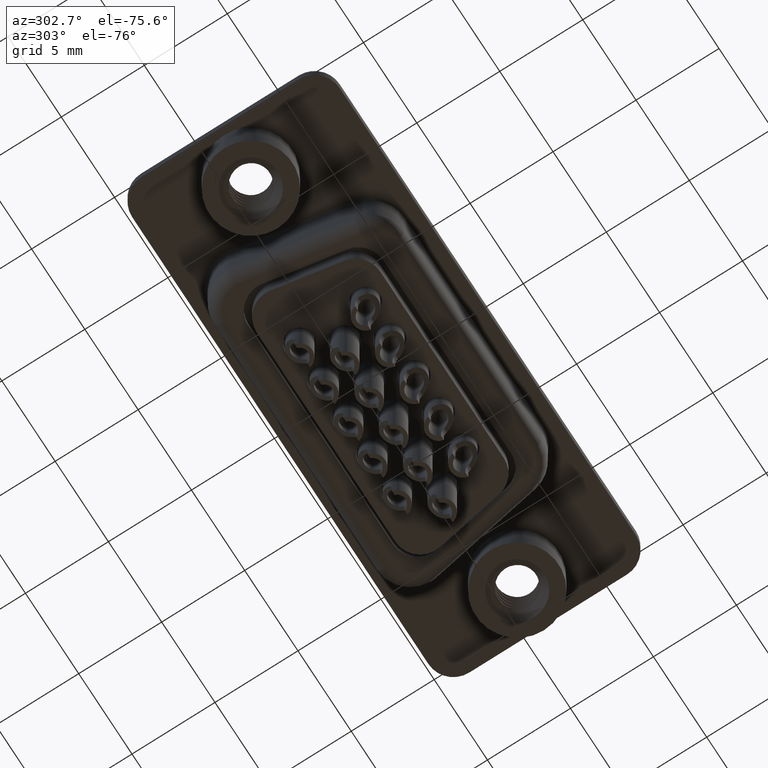
[diagram: clean part render]
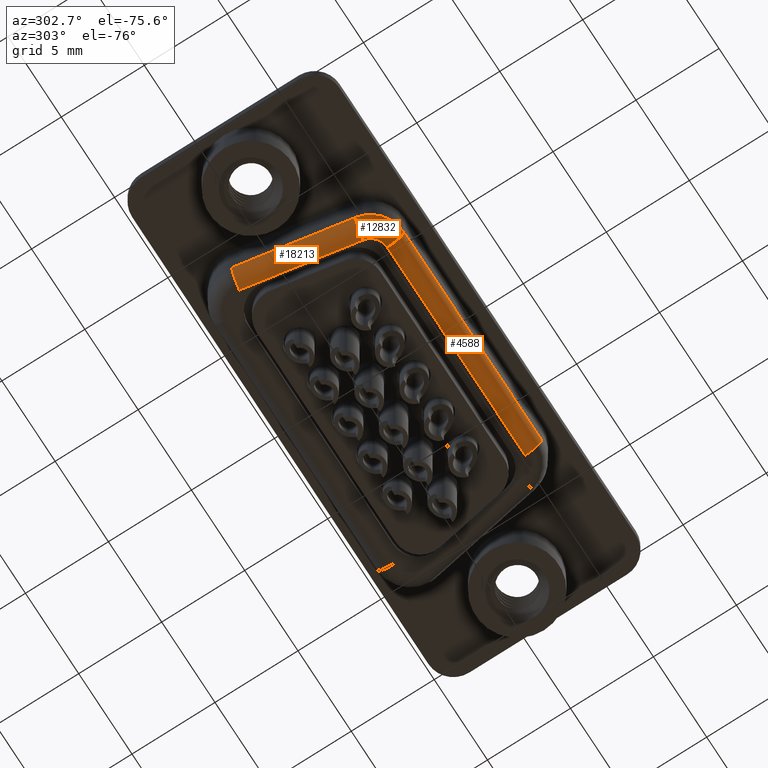
[diagram: same view with one multi-face feature highlighted, each face labeled with its STEP entity id]
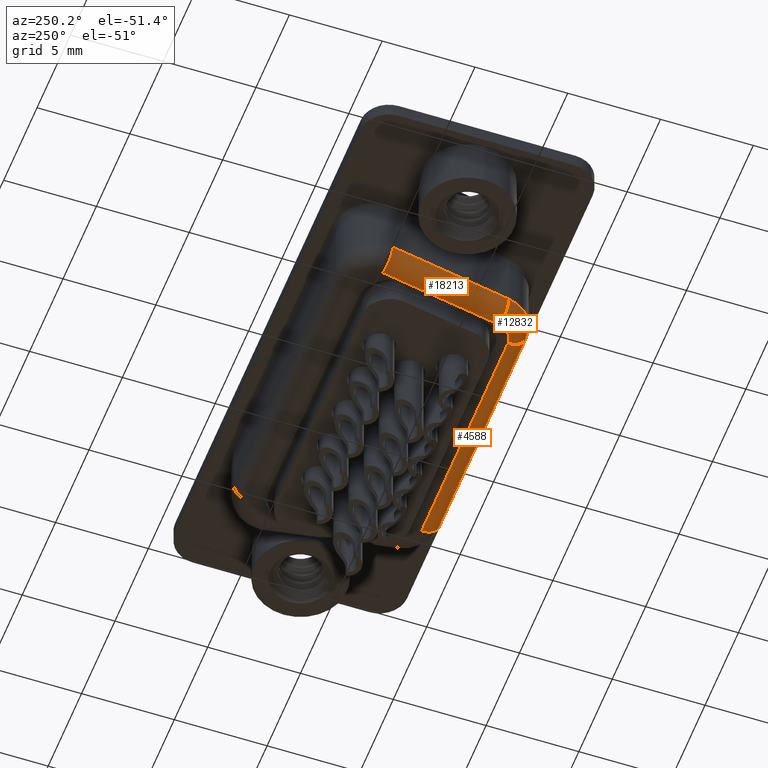
[diagram: same view with one multi-face feature highlighted, each face labeled with its STEP entity id]
A machine part, auxiliary view. The highlighted faces form ONE feature: a constant-radius fillet chain: 3 tangent blend faces with common blend radius 1 mm. The faces share edges in the B-rep.
A second angle (auxiliary view) of the same feature is appended — it is thin or edge-on in the first view.
Their STEP definitions:
[1] entity #12832 (Torus):
#145 = AXIS2_PLACEMENT_3D ( 'NONE', #7352, #6256, #10787 ) ;
#242 = CIRCLE ( 'NONE', #6769, 0.9999999999999991118 ) ;
#661 = CARTESIAN_POINT ( 'NONE',  ( 6.031390770746678953, -3.350000000000002309, -3.499999999999999556 ) ) ;
#781 = VERTEX_POINT ( 'NONE', #4279 ) ;
#876 = DIRECTION ( 'NONE',  ( 0.0000000000000000000, -0.0000000000000000000, 1.000000000000000000 ) ) ;
#1015 = DIRECTION ( 'NONE',  ( 0.0000000000000000000, 0.0000000000000000000, 1.000000000000000000 ) ) ;
#2216 = FACE_OUTER_BOUND ( 'NONE', #7140, .T. ) ;
#4279 = CARTESIAN_POINT ( 'NONE',  ( 4.061775264722261802, -3.697296355333849593, -3.499999999999999556 ) ) ;
#5070 = CARTESIAN_POINT ( 'NONE',  ( 6.031390770746678953, -3.350000000000002309, -3.499999999999999556 ) ) ;
#5214 = CARTESIAN_POINT ( 'NONE',  ( 6.031390770746678953, -4.350000000000002309, -4.500000000000000000 ) ) ;
#5352 = VERTEX_POINT ( 'NONE', #5214 ) ;
#6256 = DIRECTION ( 'NONE',  ( -0.1736481776669239752, 0.9848077530122093526, 0.0000000000000000000 ) ) ;
#6769 = AXIS2_PLACEMENT_3D ( 'NONE', #13403, #10265, #8970 ) ;
#6992 = CIRCLE ( 'NONE', #145, 0.9999999999999996669 ) ;
#7140 = EDGE_LOOP ( 'NONE', ( #11311, #9051, #10963, #9186 ) ) ;
#7352 = CARTESIAN_POINT ( 'NONE',  ( 5.046583017734470822, -3.523648177666925729, -3.499999999999999556 ) ) ;
#8086 = CARTESIAN_POINT ( 'NONE',  ( 6.031390770746678953, -5.350000000000002309, -3.499999999999999556 ) ) ;
#8970 = DIRECTION ( 'NONE',  ( 1.000000000000000000, 0.0000000000000000000, 0.0000000000000000000 ) ) ;
#9051 = ORIENTED_EDGE ( 'NONE', *, *, #12409, .F. ) ;
#9186 = ORIENTED_EDGE ( 'NONE', *, *, #17930, .F. ) ;
#10265 = DIRECTION ( 'NONE',  ( -0.0000000000000000000, 0.0000000000000000000, -1.000000000000000000 ) ) ;
#10787 = DIRECTION ( 'NONE',  ( -0.9848077530122092416, -0.1736481776669239752, 0.0000000000000000000 ) ) ;
#10963 = ORIENTED_EDGE ( 'NONE', *, *, #14937, .F. ) ;
#11311 = ORIENTED_EDGE ( 'NONE', *, *, #15575, .T. ) ;
#12266 = AXIS2_PLACEMENT_3D ( 'NONE', #661, #17299, #17106 ) ;
#12409 = EDGE_CURVE ( 'NONE', #781, #14154, #16000, .T. ) ;
#12832 = ADVANCED_FACE ( 'NONE', ( #2216 ), #13850, .T. ) ;
#13403 = CARTESIAN_POINT ( 'NONE',  ( 6.031390770746678953, -3.350000000000002309, -4.500000000000000000 ) ) ;
#13850 = TOROIDAL_SURFACE ( 'NONE', #12266, 0.9999999999999995559, 1.000000000000000000 ) ;
#13965 = CARTESIAN_POINT ( 'NONE',  ( 6.031390770746678953, -4.350000000000002309, -3.499999999999999556 ) ) ;
#14154 = VERTEX_POINT ( 'NONE', #8086 ) ;
#14238 = CIRCLE ( 'NONE', #19240, 1.000000000000000000 ) ;
#14520 = VERTEX_POINT ( 'NONE', #18744 ) ;
#14937 = EDGE_CURVE ( 'NONE', #14520, #781, #6992, .T. ) ;
#15074 = AXIS2_PLACEMENT_3D ( 'NONE', #5070, #876, #18687 ) ;
#15575 = EDGE_CURVE ( 'NONE', #5352, #14154, #14238, .T. ) ;
#16000 = CIRCLE ( 'NONE', #15074, 2.000000000000000000 ) ;
#17106 = DIRECTION ( 'NONE',  ( 1.000000000000000000, 0.0000000000000000000, 0.0000000000000000000 ) ) ;
#17299 = DIRECTION ( 'NONE',  ( 0.0000000000000000000, -0.0000000000000000000, 1.000000000000000000 ) ) ;
#17459 = DIRECTION ( 'NONE',  ( -1.000000000000000000, -0.0000000000000000000, -0.0000000000000000000 ) ) ;
#17930 = EDGE_CURVE ( 'NONE', #5352, #14520, #242, .T. ) ;
#18687 = DIRECTION ( 'NONE',  ( 1.000000000000000000, 0.0000000000000000000, 0.0000000000000000000 ) ) ;
#18744 = CARTESIAN_POINT ( 'NONE',  ( 5.046583017734470822, -3.523648177666925729, -4.500000000000000000 ) ) ;
#19240 = AXIS2_PLACEMENT_3D ( 'NONE', #13965, #17459, #1015 ) ;
[2] entity #18213 (Cylinder):
#145 = AXIS2_PLACEMENT_3D ( 'NONE', #7352, #6256, #10787 ) ;
#781 = VERTEX_POINT ( 'NONE', #4279 ) ;
#2000 = VECTOR ( 'NONE', #5638, 999.9999999999998863 ) ;
#2674 = CIRCLE ( 'NONE', #13621, 1.000000000000000000 ) ;
#3162 = EDGE_CURVE ( 'NONE', #11151, #781, #13208, .T. ) ;
#3473 = DIRECTION ( 'NONE',  ( -0.9848077530122093526, -0.1736481776669234756, 0.0000000000000000000 ) ) ;
#3769 = ORIENTED_EDGE ( 'NONE', *, *, #14937, .T. ) ;
#3970 = CARTESIAN_POINT ( 'NONE',  ( 2.880384493975589155, 3.002703644666158578, -3.499999999999999556 ) ) ;
#4279 = CARTESIAN_POINT ( 'NONE',  ( 4.061775264722261802, -3.697296355333849593, -3.499999999999999556 ) ) ;
#5244 = DIRECTION ( 'NONE',  ( -0.9848077530122092416, -0.1736481776669239752, 0.0000000000000000000 ) ) ;
#5638 = DIRECTION ( 'NONE',  ( 0.1736481776669240029, -0.9848077530122092416, -0.0000000000000000000 ) ) ;
#6256 = DIRECTION ( 'NONE',  ( -0.1736481776669239752, 0.9848077530122093526, 0.0000000000000000000 ) ) ;
#6844 = DIRECTION ( 'NONE',  ( -0.1736481776669240029, 0.9848077530122092416, 0.0000000000000000000 ) ) ;
#6992 = CIRCLE ( 'NONE', #145, 0.9999999999999996669 ) ;
#7137 = CARTESIAN_POINT ( 'NONE',  ( 5.046583017734470822, -3.523648177666926173, -4.500000000000000000 ) ) ;
#7352 = CARTESIAN_POINT ( 'NONE',  ( 5.046583017734470822, -3.523648177666925729, -3.499999999999999556 ) ) ;
#8090 = DIRECTION ( 'NONE',  ( -0.1736481776669240029, 0.9848077530122092416, 0.0000000000000000000 ) ) ;
#9540 = VERTEX_POINT ( 'NONE', #11866 ) ;
#9846 = CARTESIAN_POINT ( 'NONE',  ( 5.046583017734470822, -3.523648177666926173, -3.499999999999999556 ) ) ;
#10468 = ORIENTED_EDGE ( 'NONE', *, *, #15692, .F. ) ;
#10787 = DIRECTION ( 'NONE',  ( -0.9848077530122092416, -0.1736481776669239752, 0.0000000000000000000 ) ) ;
#10918 = CARTESIAN_POINT ( 'NONE',  ( 3.865192246987798175, 3.176351822333082442, -3.499999999999999556 ) ) ;
#11151 = VERTEX_POINT ( 'NONE', #3970 ) ;
#11633 = CARTESIAN_POINT ( 'NONE',  ( 2.880384493975589155, 3.002703644666158578, -3.499999999999999556 ) ) ;
#11866 = CARTESIAN_POINT ( 'NONE',  ( 3.865192246987798175, 3.176351822333082442, -4.500000000000000000 ) ) ;
#12616 = CYLINDRICAL_SURFACE ( 'NONE', #16499, 0.9999999999999996669 ) ;
#12969 = VECTOR ( 'NONE', #6844, 999.9999999999998863 ) ;
#13208 = LINE ( 'NONE', #11633, #2000 ) ;
#13378 = ORIENTED_EDGE ( 'NONE', *, *, #15161, .F. ) ;
#13621 = AXIS2_PLACEMENT_3D ( 'NONE', #10918, #16898, #3473 ) ;
#14410 = LINE ( 'NONE', #7137, #12969 ) ;
#14462 = FACE_OUTER_BOUND ( 'NONE', #15534, .T. ) ;
#14520 = VERTEX_POINT ( 'NONE', #18744 ) ;
#14937 = EDGE_CURVE ( 'NONE', #14520, #781, #6992, .T. ) ;
#15161 = EDGE_CURVE ( 'NONE', #14520, #9540, #14410, .T. ) ;
#15534 = EDGE_LOOP ( 'NONE', ( #3769, #16055, #10468, #13378 ) ) ;
#15692 = EDGE_CURVE ( 'NONE', #9540, #11151, #2674, .T. ) ;
#16055 = ORIENTED_EDGE ( 'NONE', *, *, #3162, .F. ) ;
#16499 = AXIS2_PLACEMENT_3D ( 'NONE', #9846, #8090, #5244 ) ;
#16898 = DIRECTION ( 'NONE',  ( -0.1736481776669235588, 0.9848077530122093526, 0.0000000000000000000 ) ) ;
#18213 = ADVANCED_FACE ( 'NONE', ( #14462 ), #12616, .T. ) ;
#18744 = CARTESIAN_POINT ( 'NONE',  ( 5.046583017734470822, -3.523648177666925729, -4.500000000000000000 ) ) ;
[3] entity #4588 (Cylinder):
#1015 = DIRECTION ( 'NONE',  ( 0.0000000000000000000, 0.0000000000000000000, 1.000000000000000000 ) ) ;
#1434 = CARTESIAN_POINT ( 'NONE',  ( 18.96860922925333526, -5.350000000000002309, -3.499999999999999556 ) ) ;
#1989 = DIRECTION ( 'NONE',  ( 0.0000000000000000000, 0.0000000000000000000, 1.000000000000000000 ) ) ;
#2924 = FACE_OUTER_BOUND ( 'NONE', #3678, .T. ) ;
#3678 = EDGE_LOOP ( 'NONE', ( #18227, #13148, #5808, #5369 ) ) ;
#4251 = VERTEX_POINT ( 'NONE', #4679 ) ;
#4561 = CYLINDRICAL_SURFACE ( 'NONE', #10427, 1.000000000000000000 ) ;
#4588 = ADVANCED_FACE ( 'NONE', ( #2924 ), #4561, .T. ) ;
#4679 = CARTESIAN_POINT ( 'NONE',  ( 18.96860922925333526, -4.350000000000002309, -4.500000000000000000 ) ) ;
#5141 = LINE ( 'NONE', #17100, #8462 ) ;
#5195 = DIRECTION ( 'NONE',  ( -1.000000000000000000, -0.0000000000000000000, -0.0000000000000000000 ) ) ;
#5214 = CARTESIAN_POINT ( 'NONE',  ( 6.031390770746678953, -4.350000000000002309, -4.500000000000000000 ) ) ;
#5352 = VERTEX_POINT ( 'NONE', #5214 ) ;
#5369 = ORIENTED_EDGE ( 'NONE', *, *, #11557, .F. ) ;
#5641 = DIRECTION ( 'NONE',  ( -1.000000000000000000, 0.0000000000000000000, 0.0000000000000000000 ) ) ;
#5808 = ORIENTED_EDGE ( 'NONE', *, *, #15575, .F. ) ;
#6284 = DIRECTION ( 'NONE',  ( 1.000000000000000000, -0.0000000000000000000, -0.0000000000000000000 ) ) ;
#6568 = VECTOR ( 'NONE', #6284, 1000.000000000000000 ) ;
#6653 = EDGE_CURVE ( 'NONE', #14154, #15520, #12180, .T. ) ;
#7630 = CIRCLE ( 'NONE', #16718, 1.000000000000000000 ) ;
#8086 = CARTESIAN_POINT ( 'NONE',  ( 6.031390770746678953, -5.350000000000002309, -3.499999999999999556 ) ) ;
#8462 = VECTOR ( 'NONE', #14166, 1000.000000000000000 ) ;
#9599 = CARTESIAN_POINT ( 'NONE',  ( 18.96860922925333526, -4.350000000000002309, -3.499999999999999556 ) ) ;
#10427 = AXIS2_PLACEMENT_3D ( 'NONE', #13312, #5641, #14768 ) ;
#11557 = EDGE_CURVE ( 'NONE', #4251, #5352, #5141, .T. ) ;
#12180 = LINE ( 'NONE', #13670, #6568 ) ;
#13148 = ORIENTED_EDGE ( 'NONE', *, *, #6653, .F. ) ;
#13312 = CARTESIAN_POINT ( 'NONE',  ( 6.031390770746678953, -4.350000000000002309, -3.499999999999999556 ) ) ;
#13670 = CARTESIAN_POINT ( 'NONE',  ( 6.031390770746678953, -5.350000000000002309, -3.499999999999999556 ) ) ;
#13965 = CARTESIAN_POINT ( 'NONE',  ( 6.031390770746678953, -4.350000000000002309, -3.499999999999999556 ) ) ;
#14154 = VERTEX_POINT ( 'NONE', #8086 ) ;
#14166 = DIRECTION ( 'NONE',  ( -1.000000000000000000, 0.0000000000000000000, 0.0000000000000000000 ) ) ;
#14238 = CIRCLE ( 'NONE', #19240, 1.000000000000000000 ) ;
#14768 = DIRECTION ( 'NONE',  ( 0.0000000000000000000, 0.0000000000000000000, 1.000000000000000000 ) ) ;
#15041 = EDGE_CURVE ( 'NONE', #4251, #15520, #7630, .T. ) ;
#15520 = VERTEX_POINT ( 'NONE', #1434 ) ;
#15575 = EDGE_CURVE ( 'NONE', #5352, #14154, #14238, .T. ) ;
#16718 = AXIS2_PLACEMENT_3D ( 'NONE', #9599, #5195, #1989 ) ;
#17100 = CARTESIAN_POINT ( 'NONE',  ( 6.031390770746678953, -4.350000000000002309, -4.500000000000000000 ) ) ;
#17459 = DIRECTION ( 'NONE',  ( -1.000000000000000000, -0.0000000000000000000, -0.0000000000000000000 ) ) ;
#18227 = ORIENTED_EDGE ( 'NONE', *, *, #15041, .T. ) ;
#19240 = AXIS2_PLACEMENT_3D ( 'NONE', #13965, #17459, #1015 ) ;